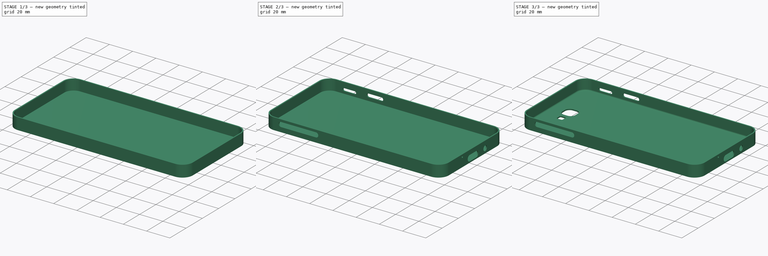
[diagram: build sequence overview — one tinted view per stage of 3, left to right]
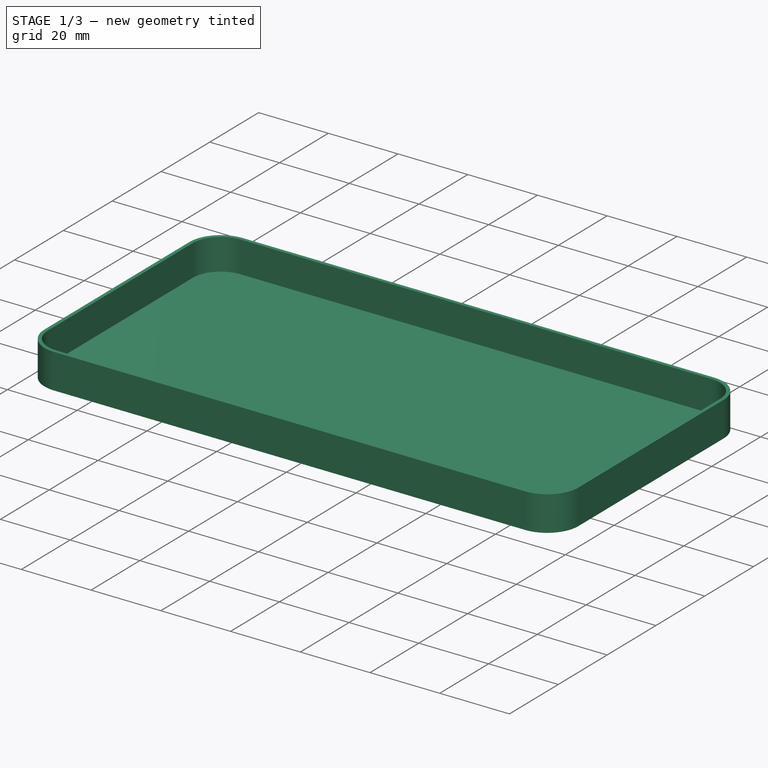
[diagram: stage 1 of 3 — iso view after this stage's code; geometry added in this stage tinted green]
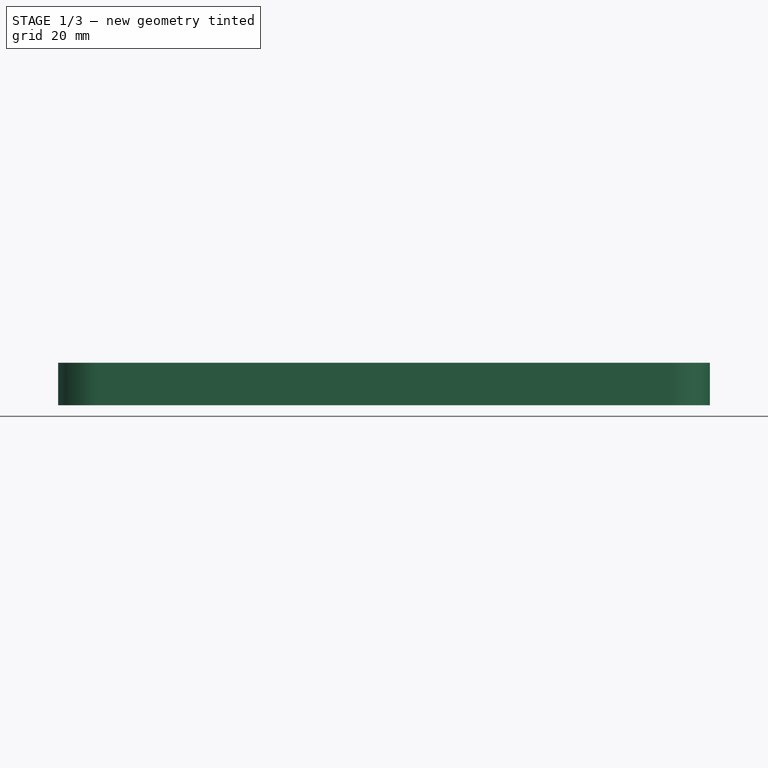
[diagram: stage 1 of 3 — front view after this stage's code; geometry added in this stage tinted green]
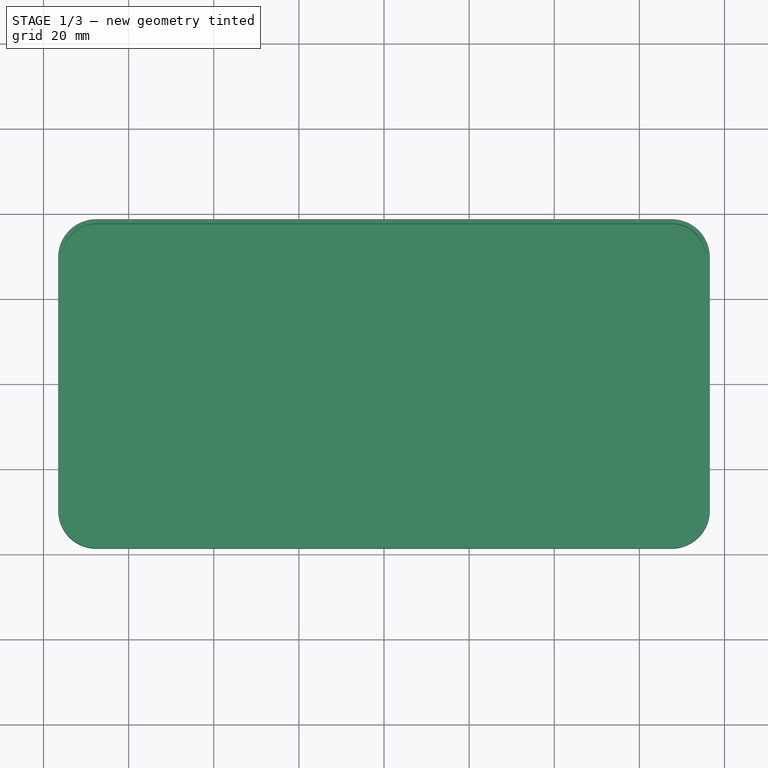
[diagram: stage 1 of 3 — top view after this stage's code; geometry added in this stage tinted green]
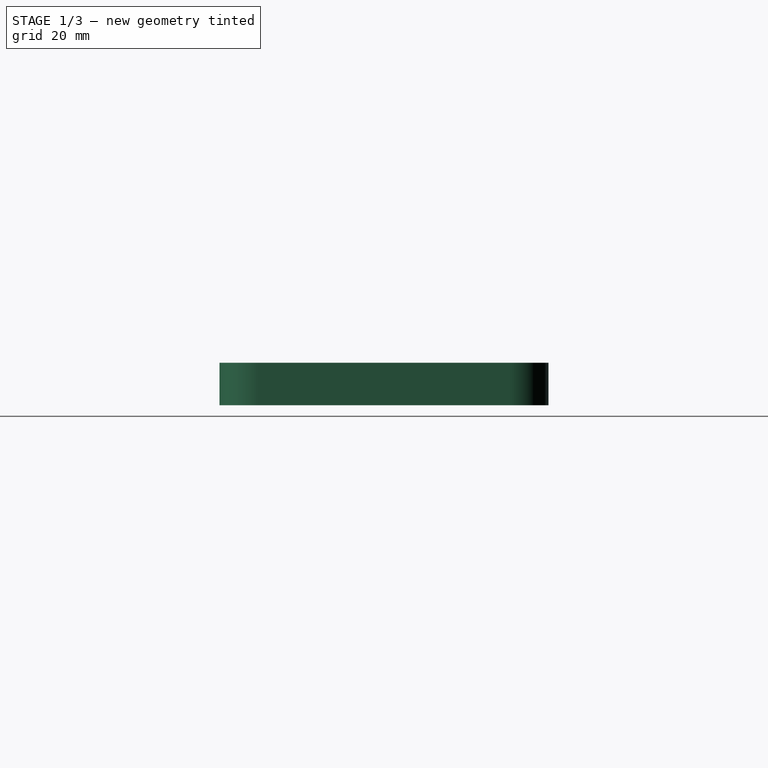
[diagram: stage 1 of 3 — right view after this stage's code; geometry added in this stage tinted green]
FCSTD DOCUMENT  (FreeCAD 0.18R16117 (Git))
Label: Coque telephone 2
License: All rights reserved
LicenseURL: http://en.wikipedia.org/wiki/All_rights_reserved
objects: Sketcher::SketchObject×6, PartDesign::Pocket×4, PartDesign::Pad×2, PartDesign::Fillet×1, PartDesign::Body×1
note: 20 computed .brp shape members not serialized (recipe doc carries the construction recipe); baked Part::Feature solids carry a one-line shape summary decoded from their .brp

FEATURE [Sketcher::SketchObject] Sketch
  MapMode = 5
  Support = -> [XY_Plane]
  sketch-geometry (16):
    g0: LineSegment StartX=-67.575 StartY=38.65 StartZ=0 EndX=67.575 EndY=38.65 EndZ=0
    g1: LineSegment StartX=76.575 StartY=29.65 StartZ=0 EndX=76.575 EndY=-29.65 EndZ=0
    g2: LineSegment StartX=67.575 StartY=-38.65 StartZ=0 EndX=-67.575 EndY=-38.65 EndZ=0
    g3: LineSegment StartX=-76.575 StartY=-29.65 StartZ=0 EndX=-76.575 EndY=29.65 EndZ=0
    g4: LineSegment StartX=-67.575 StartY=37.65 StartZ=0 EndX=67.575 EndY=37.65 EndZ=0
    g5: LineSegment StartX=75.575 StartY=29.65 StartZ=0 EndX=75.575 EndY=-29.65 EndZ=0
    g6: LineSegment StartX=67.575 StartY=-37.65 StartZ=0 EndX=-67.575 EndY=-37.65 EndZ=0
    g7: LineSegment StartX=-75.575 StartY=-29.65 StartZ=0 EndX=-75.575 EndY=29.65 EndZ=0
    g8: ArcOfCircle CenterX=-67.575 CenterY=29.65 CenterZ=0 NormalX=0 NormalY=0 NormalZ=1 AngleXU=0 Radius=8 StartAngle=1.5708 EndAngle=3.14159
    g9: ArcOfCircle CenterX=-67.575 CenterY=29.65 CenterZ=0 NormalX=0 NormalY=0 NormalZ=1 AngleXU=0 Radius=9 StartAngle=1.5708 EndAngle=3.14159
    g10: ArcOfCircle CenterX=-67.575 CenterY=-29.65 CenterZ=0 NormalX=0 NormalY=0 NormalZ=1 AngleXU=0 Radius=9 StartAngle=3.14159 EndAngle=4.71239
    g11: ArcOfCircle CenterX=67.575 CenterY=-29.65 CenterZ=0 NormalX=0 NormalY=0 NormalZ=1 AngleXU=0 Radius=9 StartAngle=4.71239 EndAngle=6.28319
    g12: ArcOfCircle CenterX=67.575 CenterY=29.65 CenterZ=0 NormalX=0 NormalY=0 NormalZ=1 AngleXU=0 Radius=9 StartAngle=0 EndAngle=1.5708
    g13: ArcOfCircle CenterX=67.575 CenterY=29.65 CenterZ=0 NormalX=0 NormalY=0 NormalZ=1 AngleXU=0 Radius=8 StartAngle=0 EndAngle=1.5708
    g14: ArcOfCircle CenterX=67.575 CenterY=-29.65 CenterZ=0 NormalX=0 NormalY=0 NormalZ=1 AngleXU=0 Radius=8 StartAngle=4.71239 EndAngle=6.28319
    g15: ArcOfCircle CenterX=-67.575 CenterY=-29.65 CenterZ=0 NormalX=0 NormalY=0 NormalZ=1 AngleXU=0 Radius=8 StartAngle=3.14159 EndAngle=4.71239
  constraints (34):
    c: Horizontal(g2)
    c: Horizontal(g4)
    c: Tangent(g4,g8) = 1.5708
    c: Tangent(g7,g8) = 1.5708
    c: Tangent(g0,g9) = 1.5708
    c: Tangent(g3,g9) = 1.5708
    c: Tangent(g2,g10) = 1.5708
    c: Tangent(g3,g10) = 1.5708
    c: Tangent(g1,g11) = 1.5708
    c: Tangent(g2,g11) = 1.5708
    c: Tangent(g0,g12) = 1.5708
    c: Tangent(g1,g12) = 1.5708
    c: Tangent(g4,g13) = 1.5708
    c: Tangent(g5,g13) = 1.5708
    c: Tangent(g5,g14) = 1.5708
    c: Tangent(g6,g14) = 1.5708
    c: Tangent(g6,g15) = 1.5708
    c: Tangent(g7,g15) = 1.5708
    c: DistanceX(g3,g10) = 9
    c: DistanceX(g7,g15) = 8
    c: Coincident(g15,g10)
    c: Vertical(g3)
    c: Symmetric(g7,g7,g-1)
    c: Horizontal(g6)
    c: Horizontal(g0)
    c: Vertical(g5)
    c: Coincident(g8,g9)
    c: Coincident(g12,g13)
    c: Coincident(g14,g11)
    c: Vertical(g10,g8)
    c: Vertical(g11,g12)
    c: Symmetric(g8,g12,g-2)
    c: DistanceX(g7,g5) = 151.15
    c: DistanceY(g6,g4) = 75.3
FEATURE [PartDesign::Pad] Pad  label="Murs"
  Length = 10
  Length2 = 100
  Profile = -> Sketch
  Type = 0
FEATURE [Sketcher::SketchObject] Sketch001
  ExternalGeometry = -> [Pad]
  MapMode = 5
  Placement = pos=(0,0,0) rot=(1,0,0;3.14159rad)
  Support = -> [Pad]
  sketch-geometry (9):
    g0: ArcOfCircle CenterX=-67.575 CenterY=29.65 CenterZ=0 NormalX=0 NormalY=0 NormalZ=1 AngleXU=0 Radius=9 StartAngle=1.5708 EndAngle=3.14159
    g1: ArcOfCircle CenterX=-67.575 CenterY=-29.65 CenterZ=0 NormalX=0 NormalY=0 NormalZ=1 AngleXU=0 Radius=9 StartAngle=3.14159 EndAngle=4.71239
    g2: ArcOfCircle CenterX=67.575 CenterY=-29.65 CenterZ=0 NormalX=0 NormalY=0 NormalZ=1 AngleXU=0 Radius=9 StartAngle=4.71239 EndAngle=6.28318
    g3: ArcOfCircle CenterX=67.575 CenterY=29.65 CenterZ=0 NormalX=0 NormalY=0 NormalZ=1 AngleXU=0 Radius=9 StartAngle=-9e-16 EndAngle=1.5708
    g4: LineSegment [constr] StartX=-67.575 StartY=29.65 StartZ=0 EndX=-76.575 EndY=29.65 EndZ=0
    g5: LineSegment StartX=-67.575 StartY=38.65 StartZ=0 EndX=67.575 EndY=38.65 EndZ=0
    g6: LineSegment StartX=-67.575 StartY=-38.65 StartZ=0 EndX=67.575 EndY=-38.65 EndZ=0
    g7: LineSegment StartX=76.575 StartY=-29.65 StartZ=0 EndX=76.575 EndY=29.65 EndZ=0
    g8: LineSegment StartX=-76.575 StartY=29.65 StartZ=0 EndX=-76.575 EndY=-29.65 EndZ=0
  constraints (25):
    c: Coincident(g0,g-3)
    c: Vertical(g0,g0)
    c: Coincident(g-10,g1)
    c: Coincident(g4,g0)
    c: Coincident(g-4,g4)
    c: Coincident(g0,g4)
    c: Horizontal(g3,g0)
    c: Horizontal(g3,g0)
    c: Coincident(g3,g-7)
    c: Equal(g3,g0)
    c: Coincident(g2,g-9)
    c: Equal(g2,g0)
    c: Vertical(g2,g3)
    c: Horizontal(g2,g-10)
    c: Equal(g1,g0)
    c: Vertical(g1,g1)
    c: Horizontal(g1,g1)
    c: Coincident(g5,g0)
    c: Coincident(g5,g3)
    c: Coincident(g7,g3)
    c: Coincident(g7,g2)
    c: Coincident(g6,g2)
    c: Coincident(g6,g1)
    c: Coincident(g8,g1)
    c: Coincident(g8,g0)
FEATURE [PartDesign::Pad] Pad001  label="Fond"
  BaseFeature = -> Pad
  Length = 1
  Length2 = 100
  Profile = -> Sketch001
  Reversed = true
  Type = 0
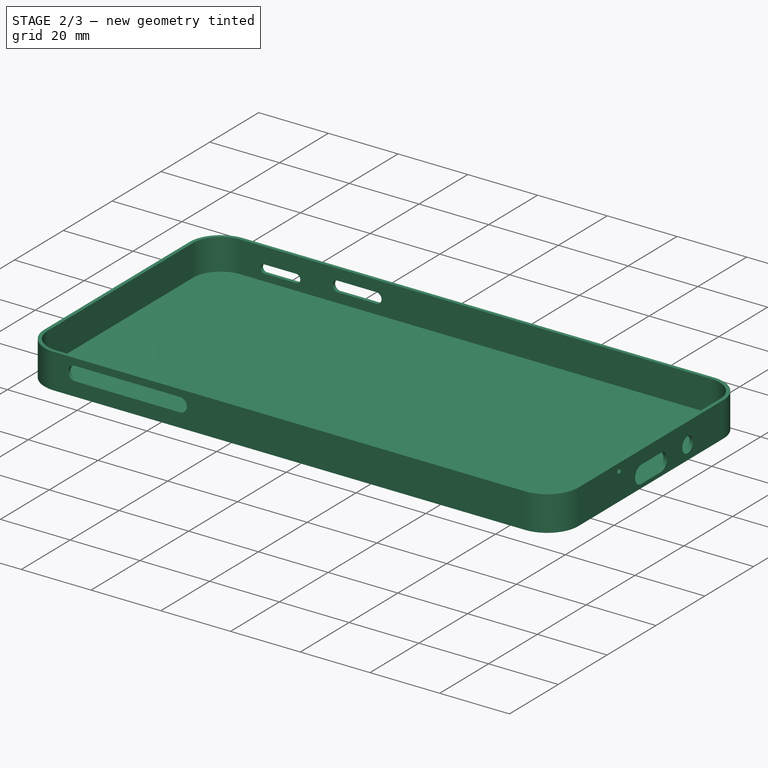
[diagram: stage 2 of 3 — iso view after this stage's code; geometry added in this stage tinted green]
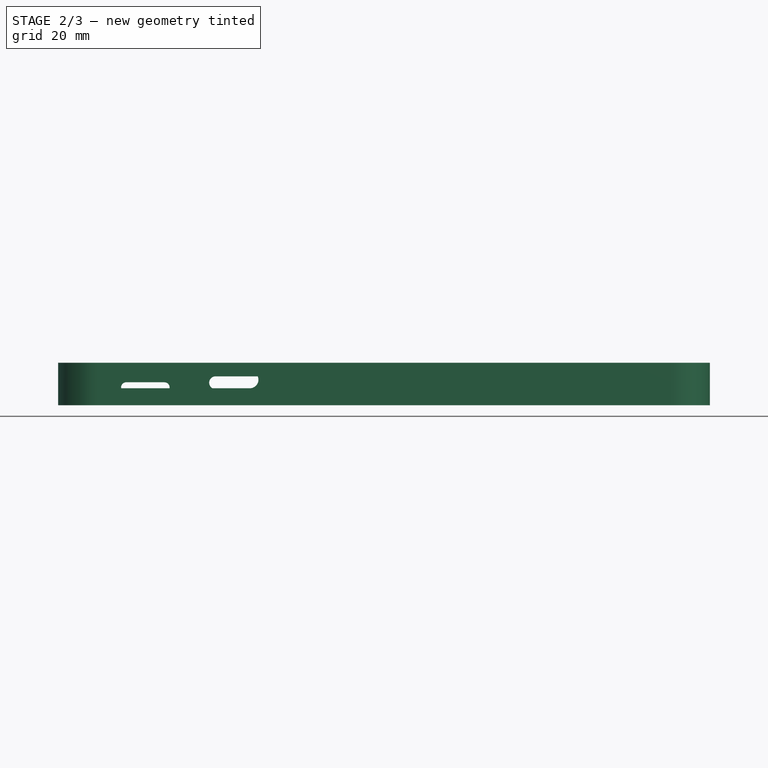
[diagram: stage 2 of 3 — front view after this stage's code; geometry added in this stage tinted green]
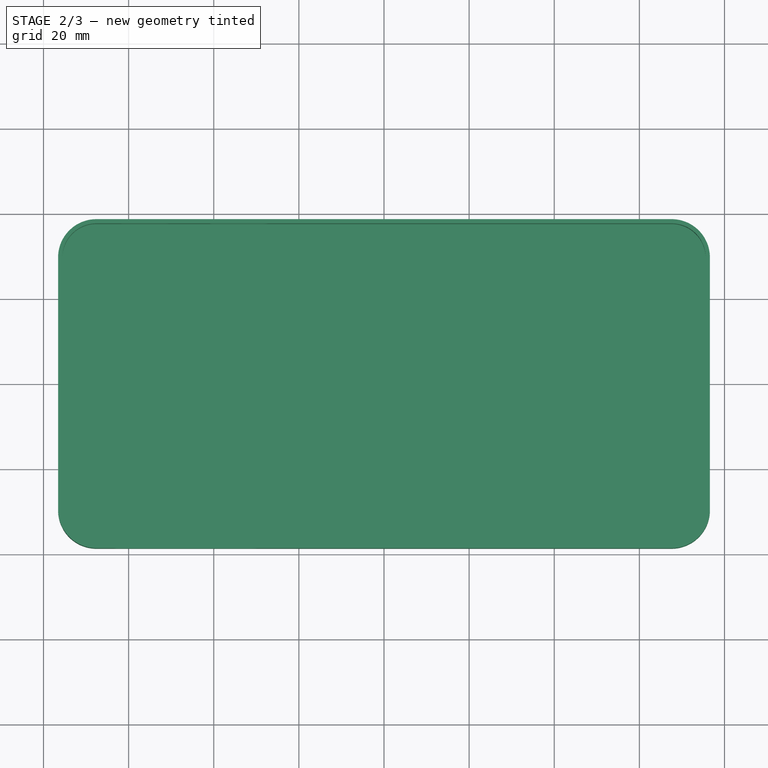
[diagram: stage 2 of 3 — top view after this stage's code; geometry added in this stage tinted green]
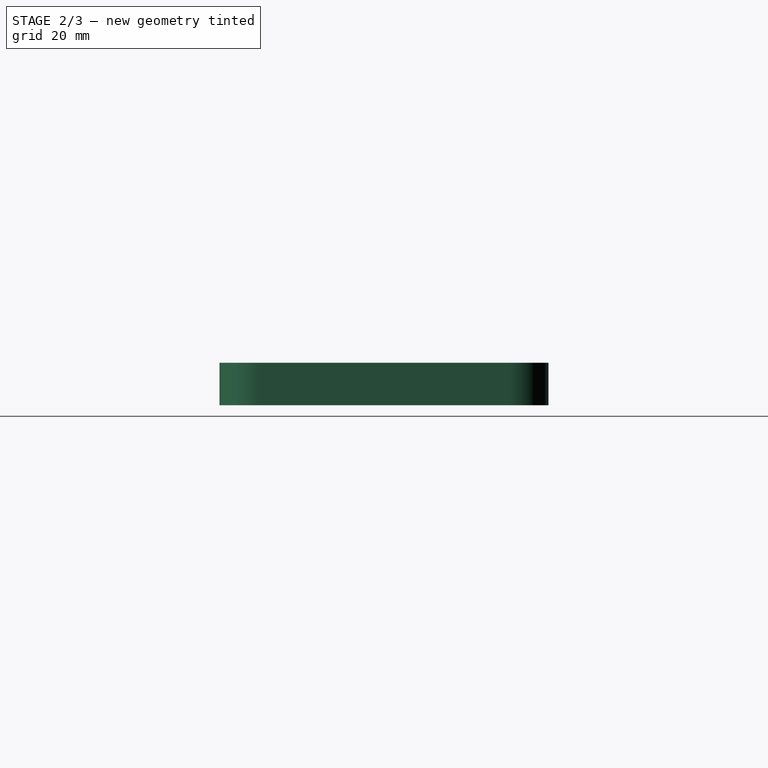
[diagram: stage 2 of 3 — right view after this stage's code; geometry added in this stage tinted green]
FEATURE [Sketcher::SketchObject] Sketch002
  ExternalGeometry = -> [Pad001]
  MapMode = 5
  Placement = pos=(0,-38.65,0) rot=(1,0,0;1.5708rad)
  Support = -> [Pad001]
  sketch-geometry (4):
    g0: ArcOfCircle CenterX=-61.5 CenterY=6 CenterZ=0 NormalX=0 NormalY=0 NormalZ=1 AngleXU=0 Radius=2 StartAngle=1.5708 EndAngle=4.71239
    g1: ArcOfCircle CenterX=-31.5 CenterY=6 CenterZ=0 NormalX=0 NormalY=0 NormalZ=1 AngleXU=0 Radius=2 StartAngle=4.71239 EndAngle=7.85398
    g2: LineSegment StartX=-61.5 StartY=4 StartZ=0 EndX=-31.5 EndY=4 EndZ=0
    g3: LineSegment StartX=-61.5 StartY=8 StartZ=0 EndX=-31.5 EndY=8 EndZ=0
  constraints (8):
    c: Tangent(g0,g3) = 1.5708
    c: Tangent(g0,g2) = -1.5708
    c: Tangent(g2,g1) = -1.5708
    c: Tangent(g3,g1) = 1.5708
    c: Horizontal(g2)
    c: Equal(g0,g1)
    c: DistanceY(g1,g1) = 4
    c: DistanceX(g0,g1) = 30
FEATURE [PartDesign::Pocket] Pocket  label="Percage gauche"
  BaseFeature = -> Pad001
  Length = 5
  Length2 = 100
  Profile = -> Sketch002
  Type = 0
FEATURE [Sketcher::SketchObject] Sketch003
  ExternalGeometry = -> [Pocket]
  MapMode = 5
  Placement = pos=(76.575,0,0) rot=(0.57735,0.57735,0.57735;2.0944rad)
  Support = -> [Pocket]
  sketch-geometry (6):
    g0: ArcOfCircle CenterX=-4 CenterY=3.6 CenterZ=0 NormalX=0 NormalY=0 NormalZ=1 AngleXU=0 Radius=2.5 StartAngle=1.5708 EndAngle=4.71239
    g1: ArcOfCircle CenterX=4 CenterY=3.6 CenterZ=0 NormalX=0 NormalY=0 NormalZ=1 AngleXU=0 Radius=2.5 StartAngle=4.71239 EndAngle=7.85398
    g2: LineSegment StartX=-4 StartY=1.1 StartZ=0 EndX=4 EndY=1.1 EndZ=0
    g3: LineSegment StartX=-4 StartY=6.1 StartZ=0 EndX=4 EndY=6.1 EndZ=0
    g4: Circle CenterX=15 CenterY=4 CenterZ=0 NormalX=0 NormalY=0 NormalZ=1 AngleXU=0 Radius=2.2
    g5: Circle CenterX=-13 CenterY=8 CenterZ=0 NormalX=0 NormalY=0 NormalZ=1 AngleXU=0 Radius=0.75
  constraints (19):
    c: Coincident(g0,g3)
    c: Coincident(g0,g2)
    c: Coincident(g1,g2)
    c: Coincident(g1,g3)
    c: Vertical(g0,g0)
    c: Vertical(g0,g0)
    c: Vertical(g1,g1)
    c: Vertical(g1,g1)
    c: DistanceY(g0,g0) = 5
    c: DistanceX(g0,g1) = 8
    c: Symmetric(g0,g1,g-2)
    c: Equal(g0,g1)
    c: DistanceY(g-1,g1) = 1.1
    c: DistanceX(g-1,g4) = 15
    c: Radius(g4) = 2.2
    c: DistanceX(g5,g-1) = 13
    c: Radius(g5) = 0.75
    c: DistanceY(g-1,g4) = 4
    c: DistanceY(g-1,g5) = 8
FEATURE [PartDesign::Pocket] Pocket001  label="Percage dessous"
  BaseFeature = -> Pocket
  Length = 5
  Length2 = 100
  Profile = -> Sketch003
  Type = 0
FEATURE [Sketcher::SketchObject] Sketch004
  ExternalGeometry = -> [Pocket001]
  MapMode = 5
  Placement = pos=(0,38.65,0) rot=(0,0.707107,0.707107;3.14159rad)
  Support = -> [Pocket001]
  sketch-geometry (8):
    g0: ArcOfCircle CenterX=51.575 CenterY=4.2 CenterZ=0 NormalX=0 NormalY=0 NormalZ=1 AngleXU=0 Radius=1.2 StartAngle=1.5708 EndAngle=4.71239
    g1: ArcOfCircle CenterX=60.575 CenterY=4.2 CenterZ=0 NormalX=0 NormalY=0 NormalZ=1 AngleXU=0 Radius=1.2 StartAngle=4.71239 EndAngle=7.85398
    g2: LineSegment StartX=51.575 StartY=3 StartZ=0 EndX=60.575 EndY=3 EndZ=0
    g3: LineSegment StartX=51.575 StartY=5.4 StartZ=0 EndX=60.575 EndY=5.4 EndZ=0
    g4: ArcOfCircle CenterX=28.575 CenterY=5.3 CenterZ=0 NormalX=0 NormalY=0 NormalZ=1 AngleXU=0 Radius=1.5 StartAngle=1.5708 EndAngle=4.71239
    g5: ArcOfCircle CenterX=39.575 CenterY=5.3 CenterZ=0 NormalX=0 NormalY=0 NormalZ=1 AngleXU=0 Radius=1.5 StartAngle=4.71239 EndAngle=7.85398
    g6: LineSegment StartX=28.575 StartY=3.8 StartZ=0 EndX=39.575 EndY=3.8 EndZ=0
    g7: LineSegment StartX=28.575 StartY=6.8 StartZ=0 EndX=39.575 EndY=6.8 EndZ=0
  constraints (28):
    c: DistanceX(g1,g-3) = 7
    c: Coincident(g1,g3)
    c: Coincident(g0,g3)
    c: Coincident(g1,g2)
    c: Coincident(g0,g2)
    c: Equal(g3,g2)
    c: Equal(g0,g1)
    c: Vertical(g0,g0)
    c: DistanceY(g1,g1) = 2.4
    c: DistanceX(g0,g1) = 9
    c: Vertical(g0,g0)
    c: Vertical(g1,g1)
    c: Horizontal(g2)
    c: DistanceY(g-3,g1) = 2
    c: Coincident(g5,g7)
    c: Coincident(g4,g7)
    c: Coincident(g4,g6)
    c: Coincident(g5,g6)
    c: Parallel(g6,g7)
    c: Horizontal(g6)
    c: Vertical(g4,g4)
    c: Vertical(g4,g4)
    c: Vertical(g5,g5)
    c: Vertical(g5,g5)
    c: DistanceX(g7,g7) = 11
    c: DistanceY(g4,g4) = 3
    c: DistanceX(g5,g-3) = 28
    c: DistanceY(g-3,g5) = 2.8
FEATURE [PartDesign::Pocket] Pocket002  label="Percage droite"
  BaseFeature = -> Pocket001
  Length = 5
  Length2 = 100
  Profile = -> Sketch004
  Type = 0
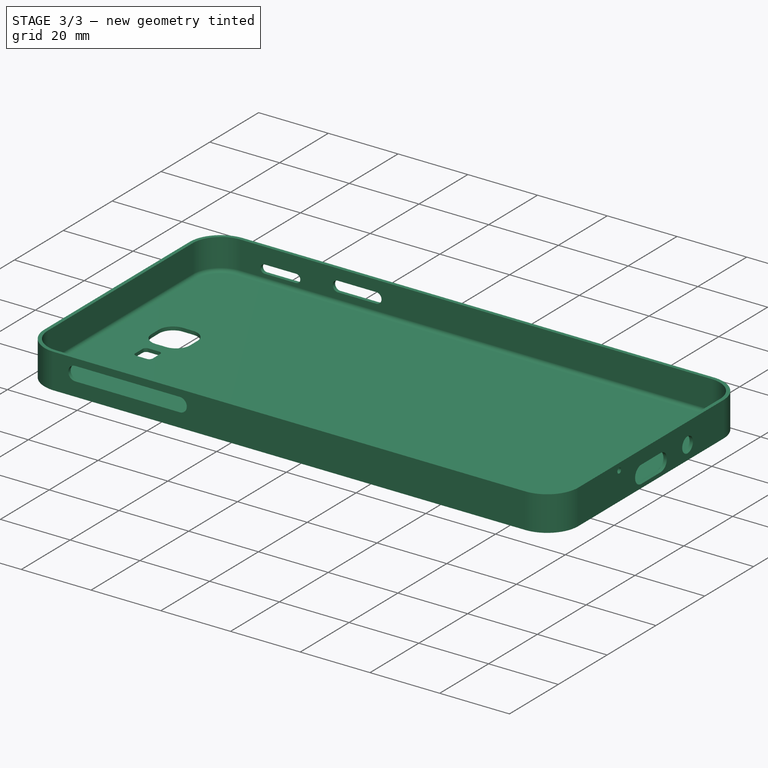
[diagram: stage 3 of 3 — iso view after this stage's code; geometry added in this stage tinted green]
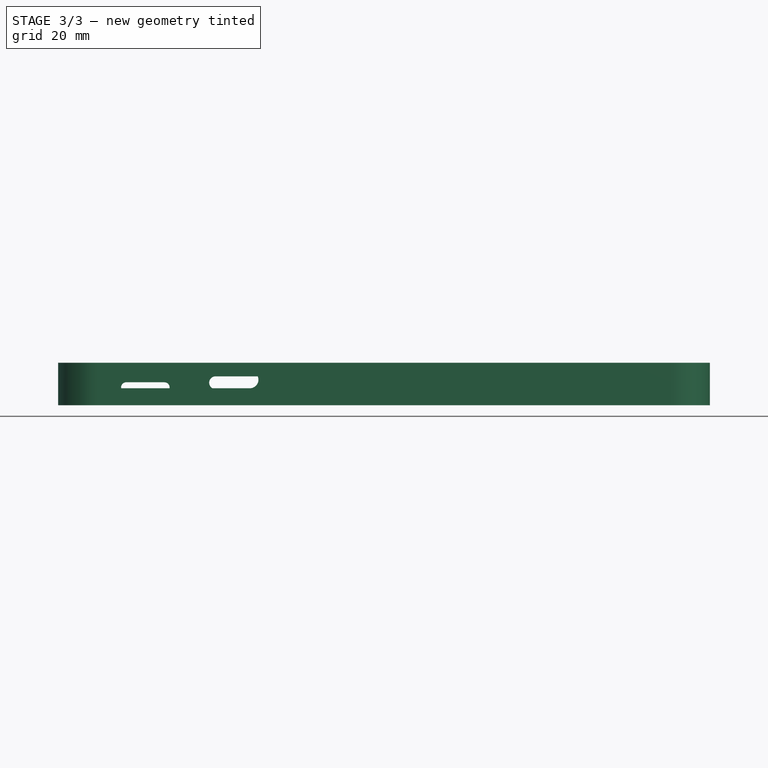
[diagram: stage 3 of 3 — front view after this stage's code; geometry added in this stage tinted green]
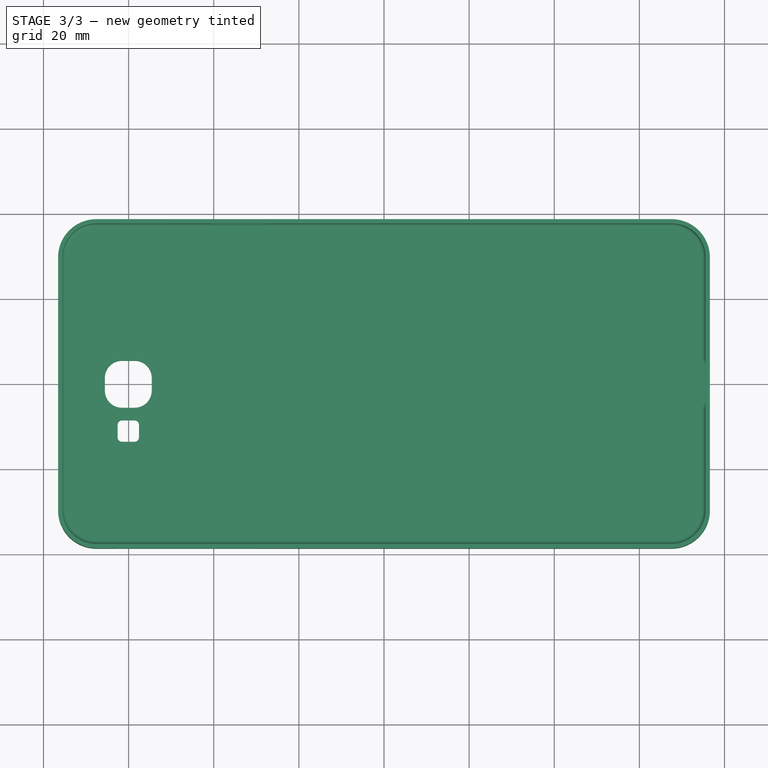
[diagram: stage 3 of 3 — top view after this stage's code; geometry added in this stage tinted green]
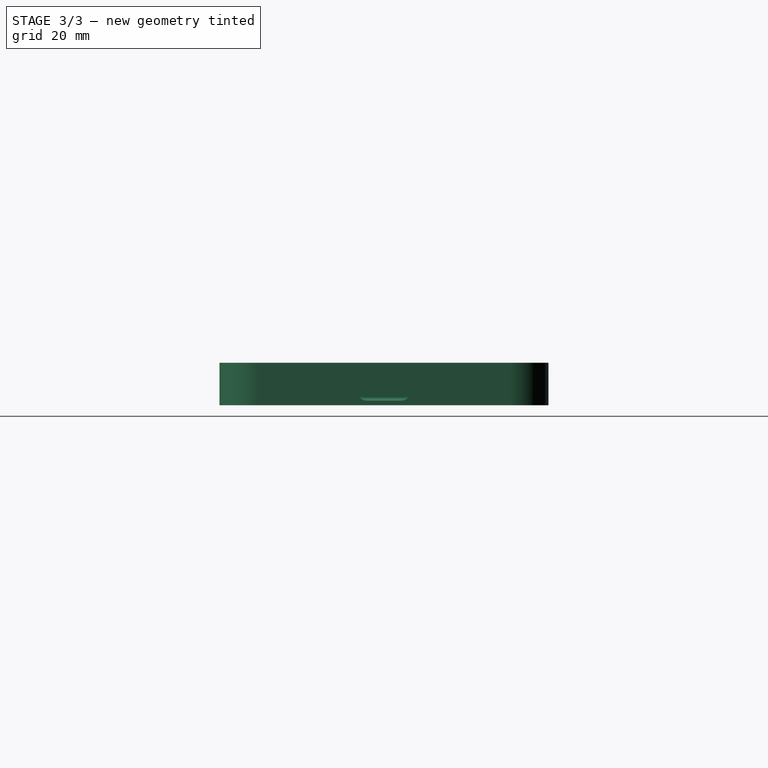
[diagram: stage 3 of 3 — right view after this stage's code; geometry added in this stage tinted green]
FEATURE [PartDesign::Fillet] Fillet  label="Fillet interieur"
  Base = -> Pocket002 [Edge87]
  BaseFeature = -> Pocket002
  Radius = 1
FEATURE [Sketcher::SketchObject] Sketch005
  ExternalGeometry = -> [Fillet]
  MapMode = 5
  Placement = pos=(0,0,0) rot=(1,0,0;3.14159rad)
  Support = -> [Fillet]
  sketch-geometry (17):
    g0: LineSegment StartX=-61.575 StartY=5.5 StartZ=0 EndX=-58.575 EndY=5.5 EndZ=0
    g1: LineSegment StartX=-54.575 StartY=1.5 StartZ=0 EndX=-54.575 EndY=-1.5 EndZ=0
    g2: LineSegment StartX=-58.575 StartY=-5.5 StartZ=0 EndX=-61.575 EndY=-5.5 EndZ=0
    g3: LineSegment StartX=-65.575 StartY=-1.5 StartZ=0 EndX=-65.575 EndY=1.5 EndZ=0
    g4: ArcOfCircle CenterX=-58.575 CenterY=1.5 CenterZ=0 NormalX=0 NormalY=0 NormalZ=1 AngleXU=0 Radius=4 StartAngle=0 EndAngle=1.5708
    g5: ArcOfCircle CenterX=-58.575 CenterY=-1.5 CenterZ=0 NormalX=0 NormalY=0 NormalZ=1 AngleXU=0 Radius=4 StartAngle=4.71239 EndAngle=6.28319
    g6: ArcOfCircle CenterX=-61.575 CenterY=-1.5 CenterZ=0 NormalX=0 NormalY=0 NormalZ=1 AngleXU=0 Radius=4 StartAngle=3.14159 EndAngle=4.71239
    g7: ArcOfCircle CenterX=-61.575 CenterY=1.5 CenterZ=0 NormalX=0 NormalY=0 NormalZ=1 AngleXU=0 Radius=4 StartAngle=1.5708 EndAngle=3.14159
    g8: LineSegment [constr] StartX=-60.075 StartY=5.5 StartZ=0 EndX=-60.075 EndY=9 EndZ=0
    g9: LineSegment StartX=-61.575 StartY=9 StartZ=0 EndX=-58.575 EndY=9 EndZ=0
    g10: LineSegment StartX=-57.575 StartY=10 StartZ=0 EndX=-57.575 EndY=13 EndZ=0
    g11: LineSegment StartX=-58.575 StartY=14 StartZ=0 EndX=-61.575 EndY=14 EndZ=0
    g12: LineSegment StartX=-62.575 StartY=13 StartZ=0 EndX=-62.575 EndY=10 EndZ=0
    g13: ArcOfCircle CenterX=-61.575 CenterY=10 CenterZ=0 NormalX=0 NormalY=0 NormalZ=1 AngleXU=0 Radius=1 StartAngle=3.14159 EndAngle=4.71239
    g14: ArcOfCircle CenterX=-58.575 CenterY=10 CenterZ=0 NormalX=0 NormalY=0 NormalZ=1 AngleXU=0 Radius=1 StartAngle=4.71239 EndAngle=6.28319
    g15: ArcOfCircle CenterX=-58.575 CenterY=13 CenterZ=0 NormalX=0 NormalY=0 NormalZ=1 AngleXU=0 Radius=1 StartAngle=6e-16 EndAngle=1.5708
    g16: ArcOfCircle CenterX=-61.575 CenterY=13 CenterZ=0 NormalX=0 NormalY=0 NormalZ=1 AngleXU=0 Radius=1 StartAngle=1.5708 EndAngle=3.14159
  constraints (41):
    c: Horizontal(g0)
    c: Horizontal(g2)
    c: Vertical(g1)
    c: Tangent(g0,g4) = 1.5708
    c: Tangent(g1,g4) = 1.5708
    c: Tangent(g1,g5) = 1.5708
    c: Tangent(g2,g5) = 1.5708
    c: Tangent(g2,g6) = 1.5708
    c: Tangent(g3,g6) = 1.5708
    c: Tangent(g0,g7) = 1.5708
    c: Tangent(g3,g7) = 1.5708
    c: Symmetric(g3,g3,g-1)
    c: DistanceY(g2,g5) = 4
    c: Vertical(g6,g7)
    c: Horizontal(g7,g4)
    c: Vertical(g4,g5)
    c: DistanceX(g3,g1) = 11
    c: DistanceY(g2,g0) = 11
    c: Symmetric(g0,g0,g8)
    c: Horizontal(g11)
    c: Vertical(g10)
    c: Vertical(g12)
    c: Tangent(g9,g13) = -1.5708
    c: Tangent(g12,g13) = -1.5708
    c: Tangent(g9,g14) = -1.5708
    c: Tangent(g10,g14) = -1.5708
    c: Tangent(g10,g15) = -1.5708
    c: Tangent(g11,g15) = -1.5708
    c: Tangent(g11,g16) = -1.5708
    c: Tangent(g12,g16) = -1.5708
    c: DistanceY(g9,g11) = 5
    c: DistanceX(g12,g10) = 5
    c: Equal(g13,g16)
    c: Equal(g14,g13)
    c: Equal(g15,g13)
    c: PointOnObject(g8,g9)
    c: PointOnObject(g8,g0)
    c: Symmetric(g9,g9,g8)
    c: Distance(g8) = 3.5
    c: Radius(g14) = 1
    c: DistanceX(g-3,g3) = 10
FEATURE [PartDesign::Pocket] Pocket003  label="Percage fond"
  BaseFeature = -> Fillet
  Length = 5
  Length2 = 100
  Profile = -> Sketch005
  Type = 0
FEATURE [PartDesign::Body] Body
  Group = -> [Sketch,Pad,Sketch001,Pad001,Sketch002,Pocket,Sketch003,Pocket001,Sketch004,Pocket002,Fillet,Sketch005,Pocket003]
  Origin = -> Origin
  Tip = -> Pocket003
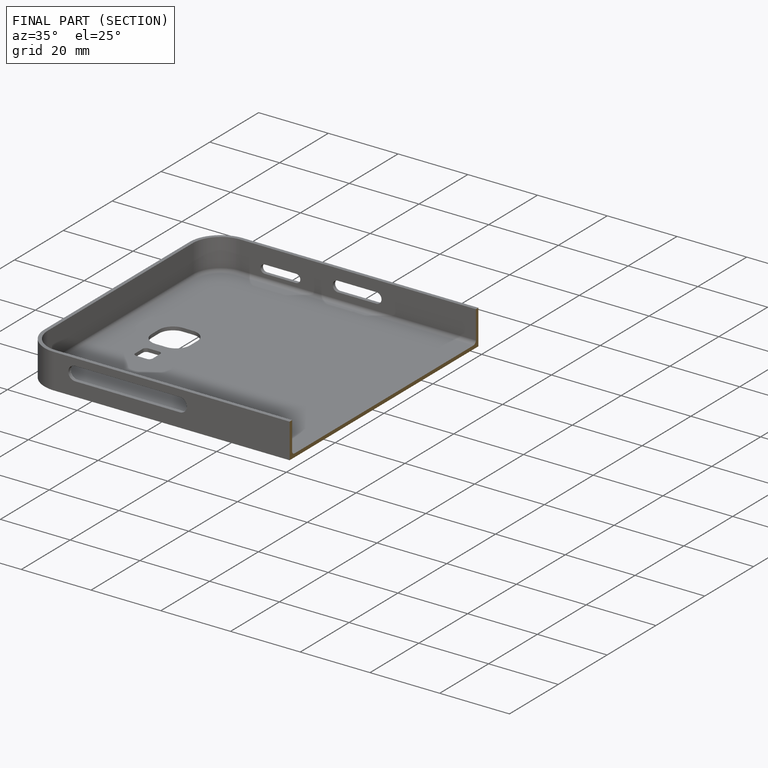
[diagram: finished part — half-section view (interior)]
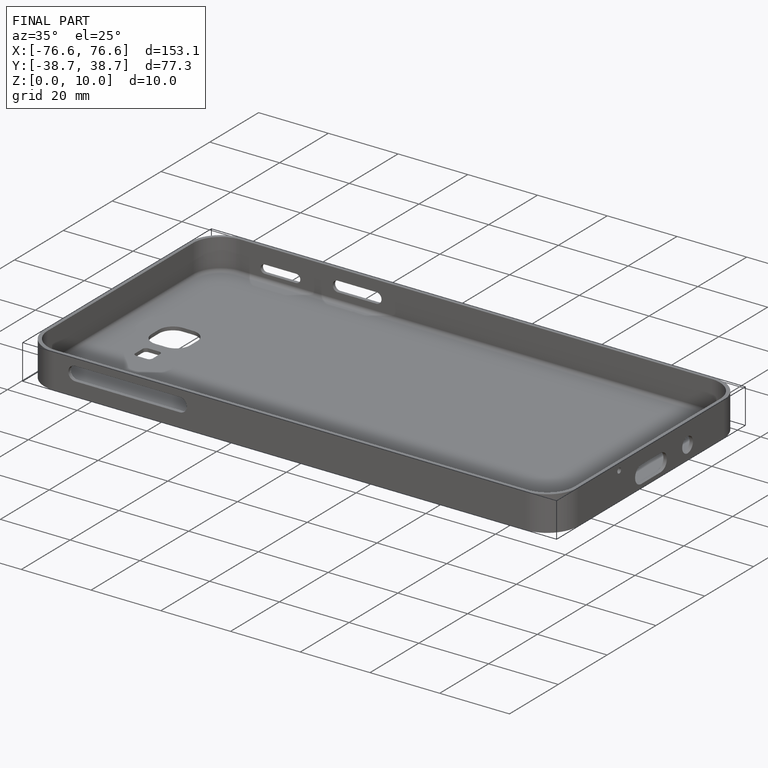
[diagram: finished part — iso view with bounding-box wireframe]
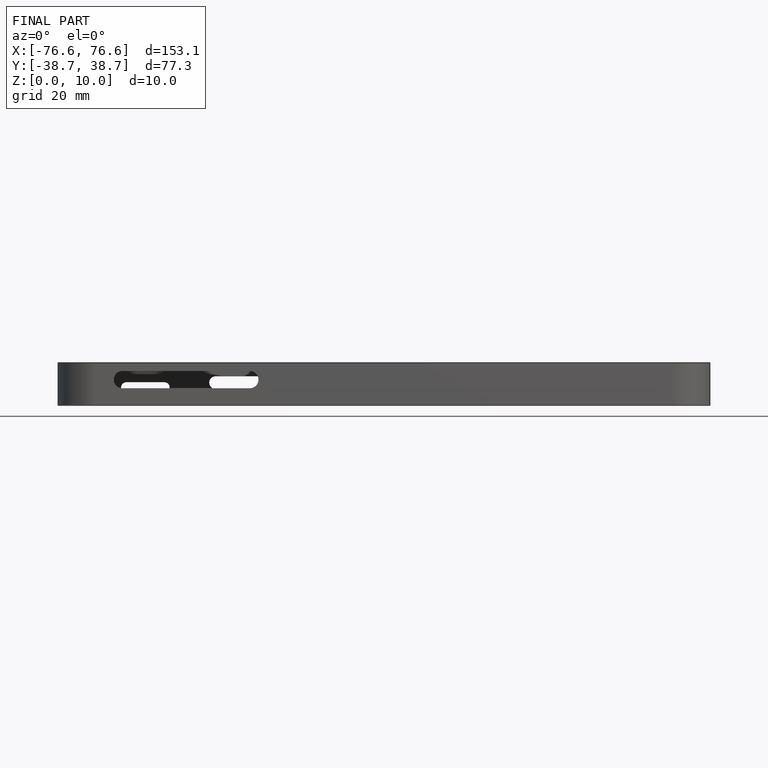
[diagram: finished part — front view with bounding-box wireframe]
